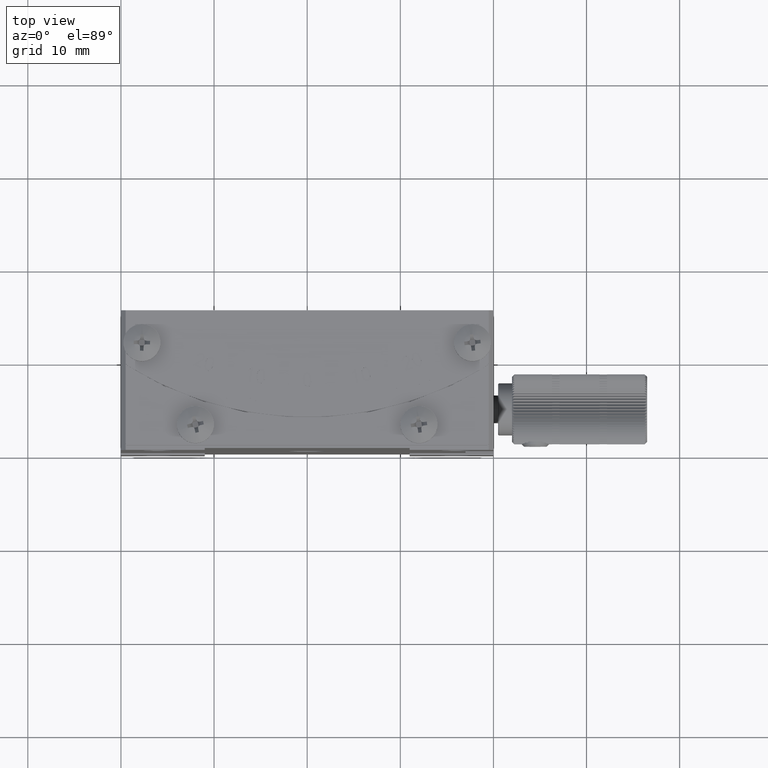
[diagram: clean part render]
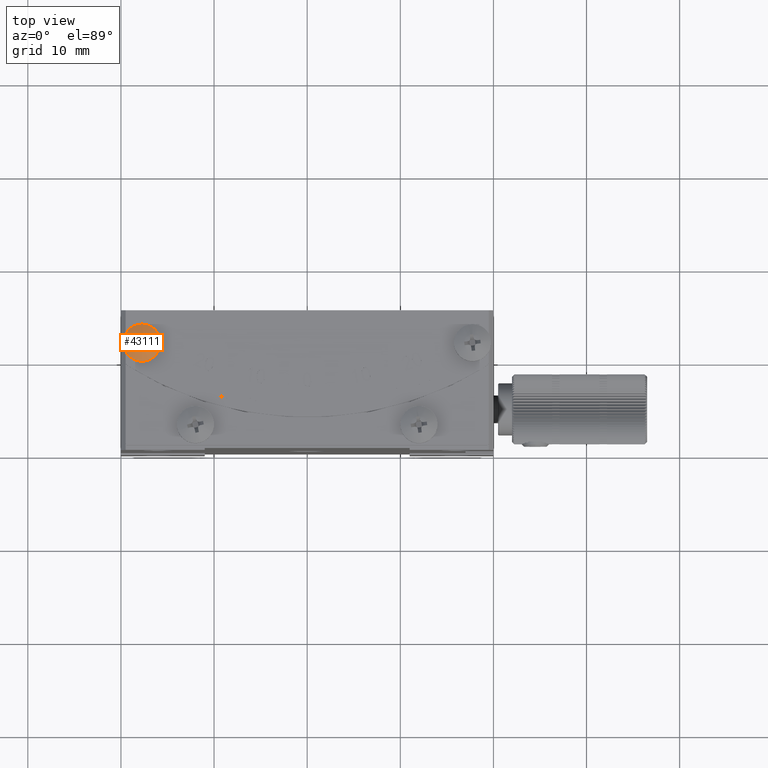
[diagram: same view with one face highlighted and labeled with its STEP entity id]
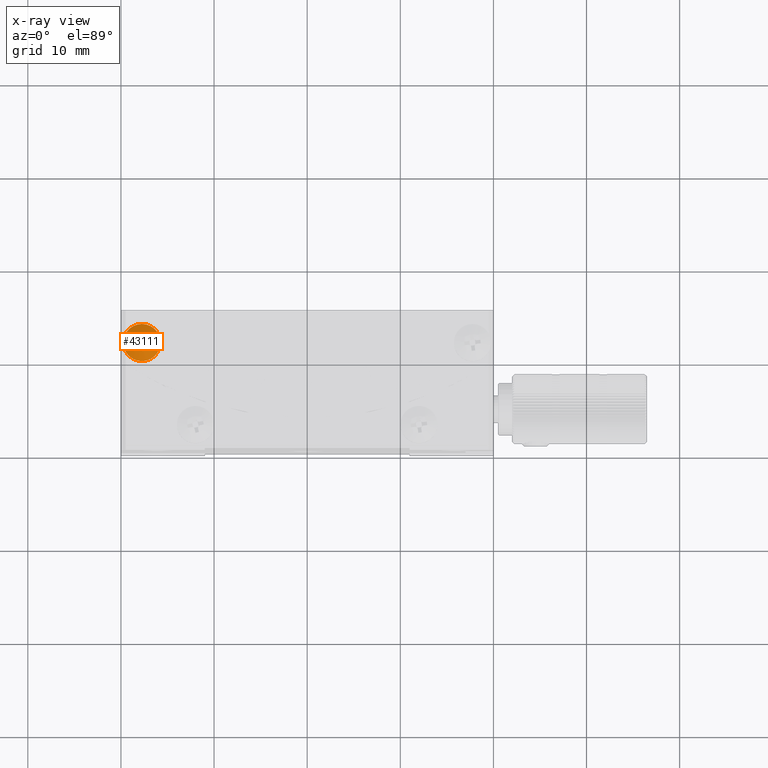
[diagram: x-ray of the same camera — body ghosted, the highlighted face saturated]
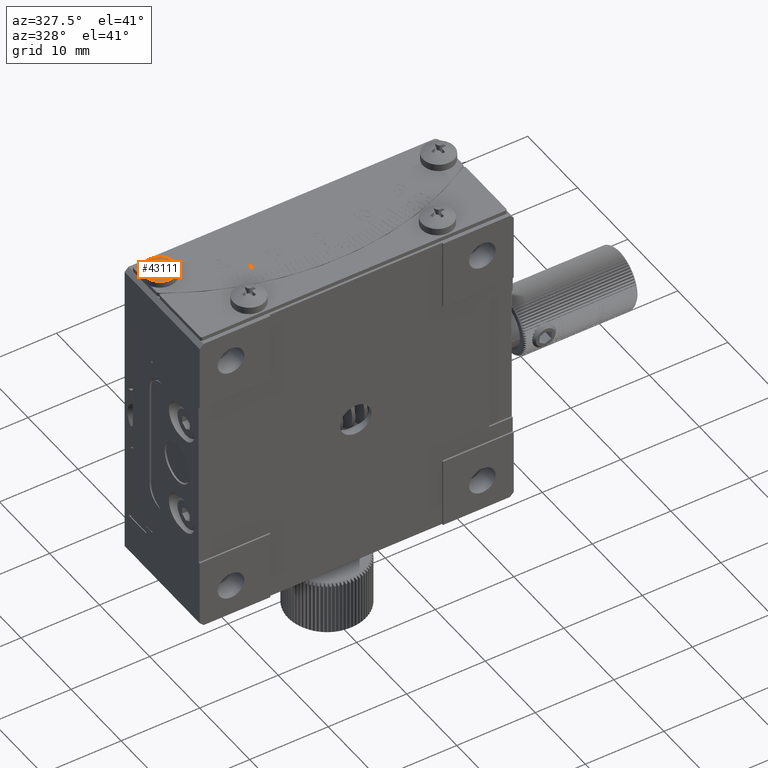
[diagram: same view with one face highlighted and labeled with its STEP entity id]
A machine part, top view. The second image highlights one B-rep face of the part: STEP entity #43111.
The next image is the same camera in x-ray: the body ghosted, the highlighted face saturated — about 0% of this face is hidden behind the body in this view.
A second angle (auxiliary view) of the same face is appended — the face is thin or edge-on in the first view.
In plain terms, the highlighted face is a freeform B-spline surface patch.
Its self-contained STEP definition (entity closure, byte-faithful):
#118 = B_SPLINE_CURVE_WITH_KNOTS ( 'NONE', 3,
 ( #23348, #52988, #13066, #8838 ),
 .UNSPECIFIED., .F., .F.,
 ( 4, 4 ),
 ( 0.000000000000000000, 1.000000000000000000 ),
 .UNSPECIFIED. ) ;
#523 = B_SPLINE_CURVE_WITH_KNOTS ( 'NONE', 3,
 ( #25782, #20962, #6750, #26429 ),
 .UNSPECIFIED., .F., .F.,
 ( 4, 4 ),
 ( 0.000000000000000000, 0.0003952073251949371805 ),
 .UNSPECIFIED. ) ;
#806 = EDGE_CURVE ( 'NONE', #22763, #16039, #28143, .T. ) ;
#939 = VERTEX_POINT ( 'NONE', #43212 ) ;
#1924 = CARTESIAN_POINT ( 'NONE',  ( -19.35210513844051050, -30.50296721763338326, 20.81347366077209315 ) ) ;
#1981 = VERTEX_POINT ( 'NONE', #50751 ) ;
#2242 = CARTESIAN_POINT ( 'NONE',  ( -15.53496063037907504, -27.74703775191293786, 21.60088181169233579 ) ) ;
#2267 = B_SPLINE_CURVE_WITH_KNOTS ( 'NONE', 3,
 ( #40875, #60558, #61184, #41820 ),
 .UNSPECIFIED., .F., .F.,
 ( 4, 4 ),
 ( 0.000000000000000000, 1.000000000000000000 ),
 .UNSPECIFIED. ) ;
#2271 = DIRECTION ( 'NONE',  ( 0.01671184099785510621, 0.9998603474338115804, 0.000000000000000000 ) ) ;
#2413 = CARTESIAN_POINT ( 'NONE',  ( -18.62273430346789738, -28.29538642827671069, 21.97188348115892254 ) ) ;
#2425 = AXIS2_PLACEMENT_3D ( 'NONE', #43353, #48532, #18574 ) ;
#2799 = CARTESIAN_POINT ( 'NONE',  ( -17.54538642827670714, -27.62726569653225539, 21.97188348115896162 ) ) ;
#2997 = EDGE_CURVE ( 'NONE', #4165, #6129, #42145, .T. ) ;
#3570 = VERTEX_POINT ( 'NONE', #62539 ) ;
#3593 = CARTESIAN_POINT ( 'NONE',  ( -17.94684832422993281, -28.90814377405679636, 22.06875370086008203 ) ) ;
#3719 = ORIENTED_EDGE ( 'NONE', *, *, #57961, .T. ) ;
#3933 = CARTESIAN_POINT ( 'NONE',  ( -17.73531126095980426, -27.62118074112969879, 21.97692394302882235 ) ) ;
#4165 = VERTEX_POINT ( 'NONE', #16659 ) ;
#4438 = CARTESIAN_POINT ( 'NONE',  ( -17.75317524978959582, -28.68997346601243237, 18.89999999999999858 ) ) ;
#5102 = VERTEX_POINT ( 'NONE', #49856 ) ;
#5254 = DIRECTION ( 'NONE',  ( 0.01671184099785510621, 0.9998603474338115804, 0.000000000000000000 ) ) ;
#5555 = CARTESIAN_POINT ( 'NONE',  ( -17.55183773189862606, -28.01324367954703831, 22.05654874823754596 ) ) ;
#6053 = ORIENTED_EDGE ( 'NONE', *, *, #2997, .T. ) ;
#6129 = VERTEX_POINT ( 'NONE', #15455 ) ;
#6202 = EDGE_CURVE ( 'NONE', #46453, #33608, #2267, .T. ) ;
#6750 = CARTESIAN_POINT ( 'NONE',  ( -17.92745456323360287, -27.74782561339930709, 22.00808052491014877 ) ) ;
#7069 = CARTESIAN_POINT ( 'NONE',  ( -18.33556445990900841, -26.46775973077802746, 21.59901555958337127 ) ) ;
#7364 = ORIENTED_EDGE ( 'NONE', *, *, #47472, .T. ) ;
#7383 = CARTESIAN_POINT ( 'NONE',  ( -19.94562718726560746, -27.67331709844125598, 21.59516803772158156 ) ) ;
#7444 = B_SPLINE_CURVE_WITH_KNOTS ( 'NONE', 3,
 ( #12285, #31900, #31593, #7744 ),
 .UNSPECIFIED., .F., .F.,
 ( 4, 4 ),
 ( 0.000000000000000000, 1.000000000000000000 ),
 .UNSPECIFIED. ) ;
#7468 = CARTESIAN_POINT ( 'NONE',  ( -17.57254543676986813, -29.25217438680876825, 22.00808052486454613 ) ) ;
#7744 = CARTESIAN_POINT ( 'NONE',  ( -17.54538642827670714, -27.62726569653225539, 21.97188348115896162 ) ) ;
#8038 = CARTESIAN_POINT ( 'NONE',  ( -17.26324367954702410, -28.69816226810138104, 22.05654874823754241 ) ) ;
#8295 = AXIS2_PLACEMENT_3D ( 'NONE', #40627, #2271, #41573 ) ;
#8446 = ORIENTED_EDGE ( 'NONE', *, *, #29471, .T. ) ;
#8838 = CARTESIAN_POINT ( 'NONE',  ( -17.76468873904019929, -29.37881925887031898, 21.97692394302882235 ) ) ;
#9232 = CARTESIAN_POINT ( 'NONE',  ( -17.95034193425408020, -29.11716455955808058, 22.03630228055737206 ) ) ;
#10008 = B_SPLINE_CURVE_WITH_KNOTS ( 'NONE', 3,
 ( #42753, #42439, #22811, #18293, #32124, #57289 ),
 .UNSPECIFIED., .F., .F.,
 ( 4, 2, 4 ),
 ( 0.000000000000000000, 0.0002353680905938592511, 0.0004707361811877185023 ),
 .UNSPECIFIED. ) ;
#10121 = DIRECTION ( 'NONE',  ( -0.9998603474338116914, 0.01671184099785471763, 0.000000000000000000 ) ) ;
#10166 = DIRECTION ( 'NONE',  ( -0.9998603474338116914, 0.01671184099785471763, -2.606684060501012863E-14 ) ) ;
#11303 = FACE_BOUND ( 'NONE', #52394, .T. ) ;
#11437 = CARTESIAN_POINT ( 'NONE',  ( -18.07975580058870335, -28.27219374645446948, 22.07577316318331384 ) ) ;
#12028 = CARTESIAN_POINT ( 'NONE',  ( -17.57039500222923323, -29.12351505913742145, 22.03630228055734719 ) ) ;
#12067 = CIRCLE ( 'NONE', #31586, 3.194354394866043556 ) ;
#12285 = CARTESIAN_POINT ( 'NONE',  ( -17.73531126095980426, -27.62118074112969879, 21.97692394302882235 ) ) ;
#13066 = CARTESIAN_POINT ( 'NONE',  ( -17.70130482883060807, -29.37987866864885689, 21.97692394302882235 ) ) ;
#13592 = CARTESIAN_POINT ( 'NONE',  ( -17.86203587094993850, -27.62003281662556731, 21.97524378907218789 ) ) ;
#13616 = CARTESIAN_POINT ( 'NONE',  ( -18.16448797195035425, -28.68309871312240134, 22.06875467922521850 ) ) ;
#13651 = EDGE_CURVE ( 'NONE', #6129, #48589, #14556, .T. ) ;
#14481 = DIRECTION ( 'NONE',  ( -0.01671184099785510621, -0.9998603474338115804, -0.000000000000000000 ) ) ;
#14556 = B_SPLINE_CURVE_WITH_KNOTS ( 'NONE', 3,
 ( #21774, #36577, #51410, #2413 ),
 .UNSPECIFIED., .F., .F.,
 ( 4, 4 ),
 ( 3.469446951953614189E-18, 0.0003799999999999967683 ),
 .UNSPECIFIED. ) ;
#14762 = EDGE_CURVE ( 'NONE', #24641, #21275, #7444, .T. ) ;
#14964 = B_SPLINE_CURVE_WITH_KNOTS ( 'NONE', 3,
 ( #2799, #17959, #21830, #52425 ),
 .UNSPECIFIED., .F., .F.,
 ( 4, 4 ),
 ( 1.565870224650816785E-16, 0.0003952073255140216746 ),
 .UNSPECIFIED. ) ;
#15026 = CARTESIAN_POINT ( 'NONE',  ( -17.75317524978959582, -28.68997346601243237, 18.89999999999999858 ) ) ;
#15455 = CARTESIAN_POINT ( 'NONE',  ( -18.62908480304708547, -28.67533336030155411, 21.97188348115891898 ) ) ;
#15756 = CARTESIAN_POINT ( 'NONE',  ( -18.23675632045297235, -28.30183773189863672, 22.05654874823754241 ) ) ;
#15923 = CARTESIAN_POINT ( 'NONE',  ( -16.87126561194471464, -28.57802949972574780, 21.97861040930522591 ) ) ;
#16039 = VERTEX_POINT ( 'NONE', #44760 ) ;
#16155 = CARTESIAN_POINT ( 'NONE',  ( -18.40178560793867391, -30.51885102473870504, 21.59252648423906962 ) ) ;
#16242 = CARTESIAN_POINT ( 'NONE',  ( -17.56821533607652697, -28.99310682003216399, 22.05654874823754241 ) ) ;
#16366 =( BOUNDED_SURFACE ( )  B_SPLINE_SURFACE ( 3, 3, ( 
 ( #21294, #7069, #46697, #25788 ),
 ( #7383, #46385, #41870, #2242 ),
 ( #16772, #50923, #46076, #45416 ),
 ( #1924, #16155, #61551, #27065 ) ),
 .UNSPECIFIED., .F., .F., .T. ) 
 B_SPLINE_SURFACE_WITH_KNOTS ( ( 4, 4 ),
 ( 4, 4 ),
 ( 0.000000000000000000, 1.000000000000000000 ),
 ( 0.000000000000000000, 1.000000000000000000 ),
 .UNSPECIFIED. ) 
 GEOMETRIC_REPRESENTATION_ITEM ( )  RATIONAL_B_SPLINE_SURFACE ( (
 ( 1.000000000000000000, 0.8494767414081668688, 0.8494767414081668688, 1.000000000000000000),
 ( 0.8493973378580044198, 0.7215432827243893898, 0.7215432827243893898, 0.8493973378580044198),
 ( 0.8493973378580044198, 0.7215432827243893898, 0.7215432827243893898, 0.8493973378580044198),
 ( 1.000000000000000000, 0.8494767414081668688, 0.8494767414081668688, 1.000000000000000000) ) ) 
 REPRESENTATION_ITEM ( '' )  SURFACE ( )  );
#16659 = CARTESIAN_POINT ( 'NONE',  ( -18.24310682003216044, -28.68178466392348369, 22.05654874823754241 ) ) ;
#16772 = CARTESIAN_POINT ( 'NONE',  ( -19.97071589607740805, -29.26312255771047433, 21.59335831028254304 ) ) ;
#16895 = AXIS2_PLACEMENT_3D ( 'NONE', #4438, #14481, #39259 ) ;
#16909 = CARTESIAN_POINT ( 'NONE',  ( -17.96678780226920225, -28.16302747027834741, 22.07578688267521372 ) ) ;
#17959 = CARTESIAN_POINT ( 'NONE',  ( -17.54750763120527779, -27.75417611277028840, 22.00808052486450350 ) ) ;
#18293 = CARTESIAN_POINT ( 'NONE',  ( -17.53321219773079420, -28.83697252972166680, 22.07578688267521372 ) ) ;
#18574 = DIRECTION ( 'NONE',  ( 0.000000000000000000, 1.000000000000000000, 0.000000000000000000 ) ) ;
#20578 = EDGE_CURVE ( 'NONE', #30437, #5102, #58403, .T. ) ;
#20962 = CARTESIAN_POINT ( 'NONE',  ( -17.92960499777253247, -27.87648494096838192, 22.03630228057377494 ) ) ;
#21275 = VERTEX_POINT ( 'NONE', #22889 ) ;
#21294 = CARTESIAN_POINT ( 'NONE',  ( -19.28817429101538394, -26.45183764318718644, 20.81808519377901234 ) ) ;
#21598 = AXIS2_PLACEMENT_3D ( 'NONE', #15026, #34667, #10166 ) ;
#21774 = CARTESIAN_POINT ( 'NONE',  ( -18.62908480304708547, -28.67533336030155411, 21.97188348115891898 ) ) ;
#21830 = CARTESIAN_POINT ( 'NONE',  ( -17.54965806574591980, -27.88283544044194073, 22.03630228055737561 ) ) ;
#21975 = EDGE_CURVE ( 'NONE', #38282, #63441, #49709, .T. ) ;
#21979 = CARTESIAN_POINT ( 'NONE',  ( -17.79869517116935640, -27.62012133135116088, 21.97692394302882235 ) ) ;
#22763 = VERTEX_POINT ( 'NONE', #44975 ) ;
#22811 = CARTESIAN_POINT ( 'NONE',  ( -17.42024419941130375, -28.72780625354554829, 22.07577316318331384 ) ) ;
#22889 = CARTESIAN_POINT ( 'NONE',  ( -17.54538642827670714, -27.62726569653225539, 21.97188348115896162 ) ) ;
#22954 = CARTESIAN_POINT ( 'NONE',  ( -17.94816226810137039, -28.98675632045298300, 22.05654874823754241 ) ) ;
#23272 = CARTESIAN_POINT ( 'NONE',  ( -17.97780625354548434, -28.82975580058868914, 22.07577316318331384 ) ) ;
#23348 = CARTESIAN_POINT ( 'NONE',  ( -17.57466663969844944, -29.37908480304709258, 21.97188348115891898 ) ) ;
#23853 = CARTESIAN_POINT ( 'NONE',  ( -17.33551202804964930, -28.31690128687761288, 22.06875467922521850 ) ) ;
#24641 = VERTEX_POINT ( 'NONE', #3933 ) ;
#24696 = CARTESIAN_POINT ( 'NONE',  ( -17.95249236879471866, -29.24582388722972581, 22.00808052486450705 ) ) ;
#25112 = CIRCLE ( 'NONE', #16895, 3.194354394866043556 ) ;
#25782 = CARTESIAN_POINT ( 'NONE',  ( -17.93178466392347303, -28.00689317996784311, 22.05654874823754241 ) ) ;
#25788 = CARTESIAN_POINT ( 'NONE',  ( -16.14921074623686437, -26.50430282974352636, 20.82215154700838866 ) ) ;
#26248 = CARTESIAN_POINT ( 'NONE',  ( -18.15814377405678570, -28.30315167577007784, 22.06875370086008203 ) ) ;
#26429 = CARTESIAN_POINT ( 'NONE',  ( -17.92533336030155056, -27.62091519695292163, 21.97188348115891898 ) ) ;
#26910 = ORIENTED_EDGE ( 'NONE', *, *, #6202, .T. ) ;
#27065 = CARTESIAN_POINT ( 'NONE',  ( -16.22068840860077543, -30.55530626540281958, 20.81753023752115084 ) ) ;
#27765 = ORIENTED_EDGE ( 'NONE', *, *, #14762, .T. ) ;
#28083 = CARTESIAN_POINT ( 'NONE',  ( -17.92533336030155056, -27.62091519695292163, 21.97188348115891898 ) ) ;
#28143 = B_SPLINE_CURVE_WITH_KNOTS ( 'NONE', 3,
 ( #16242, #12028, #7468, #60692 ),
 .UNSPECIFIED., .F., .F.,
 ( 4, 4 ),
 ( 0.000000000000000000, 0.0003952073255143299674 ),
 .UNSPECIFIED. ) ;
#28688 = CARTESIAN_POINT ( 'NONE',  ( -17.41302747027839359, -28.28321219773083328, 22.07578688267521372 ) ) ;
#28903 = CARTESIAN_POINT ( 'NONE',  ( -17.94816226810137039, -28.98675632045298300, 22.05654874823754241 ) ) ;
#29471 = EDGE_CURVE ( 'NONE', #48589, #38282, #39150, .T. ) ;
#30072 = CARTESIAN_POINT ( 'NONE',  ( -16.87091519695291097, -28.32466663969846365, 21.97188348115891543 ) ) ;
#30437 = VERTEX_POINT ( 'NONE', #5555 ) ;
#30751 = CARTESIAN_POINT ( 'NONE',  ( -17.93309871312239068, -28.08551202804965286, 22.06875467922521850 ) ) ;
#31586 = AXIS2_PLACEMENT_3D ( 'NONE', #44901, #5254, #10121 ) ;
#31593 = CARTESIAN_POINT ( 'NONE',  ( -17.60861907318922093, -27.62426846937570701, 21.97524378907218789 ) ) ;
#31689 = CARTESIAN_POINT ( 'NONE',  ( -17.93178466392347303, -28.00689317996784311, 22.05654874823754241 ) ) ;
#31900 = CARTESIAN_POINT ( 'NONE',  ( -17.67192735075025212, -27.62224015090823670, 21.97692394302882235 ) ) ;
#32124 = CARTESIAN_POINT ( 'NONE',  ( -17.56690128687761288, -28.91448797195035780, 22.06875467922521850 ) ) ;
#32490 = VERTEX_POINT ( 'NONE', #37642 ) ;
#33147 = EDGE_CURVE ( 'NONE', #32490, #32490, #52900, .T. ) ;
#33510 = VERTEX_POINT ( 'NONE', #57493 ) ;
#33608 = VERTEX_POINT ( 'NONE', #45492 ) ;
#33905 = EDGE_CURVE ( 'NONE', #21275, #30437, #14964, .T. ) ;
#34178 = CARTESIAN_POINT ( 'NONE',  ( -17.76468873904019929, -29.37881925887031898, 21.97692394302882235 ) ) ;
#34667 = DIRECTION ( 'NONE',  ( -0.01671184099785510621, -0.9998603474338115804, -0.000000000000000000 ) ) ;
#35553 = CARTESIAN_POINT ( 'NONE',  ( -16.87726569653209907, -28.70461357172330352, 21.97188348115891898 ) ) ;
#35931 = ORIENTED_EDGE ( 'NONE', *, *, #13651, .T. ) ;
#36279 = ORIENTED_EDGE ( 'NONE', *, *, #45140, .T. ) ;
#36334 = EDGE_CURVE ( 'NONE', #5102, #939, #12067, .T. ) ;
#36577 = CARTESIAN_POINT ( 'NONE',  ( -18.63085122124834214, -28.54861947761588681, 21.97861040930522591 ) ) ;
#36827 = EDGE_CURVE ( 'NONE', #44126, #22763, #10008, .T. ) ;
#37642 = CARTESIAN_POINT ( 'NONE',  ( -17.75000000000000355, -26.50000000000001066, 21.39799919935936146 ) ) ;
#38072 = CARTESIAN_POINT ( 'NONE',  ( -18.24310682003216044, -28.68178466392348369, 22.05654874823754241 ) ) ;
#38282 = VERTEX_POINT ( 'NONE', #15756 ) ;
#38928 = ORIENTED_EDGE ( 'NONE', *, *, #806, .T. ) ;
#39150 = CIRCLE ( 'NONE', #8295, 3.194354394866043556 ) ;
#39259 = DIRECTION ( 'NONE',  ( -0.9998603474338116914, 0.01671184099785471763, 0.000000000000000000 ) ) ;
#40627 = CARTESIAN_POINT ( 'NONE',  ( -17.74682475021040773, -28.31002653398758540, 18.89999999999999858 ) ) ;
#40695 = CARTESIAN_POINT ( 'NONE',  ( -18.62273430346789738, -28.29538642827671069, 21.97188348115892254 ) ) ;
#40875 = CARTESIAN_POINT ( 'NONE',  ( -17.76468873904019929, -29.37881925887031898, 21.97692394302882235 ) ) ;
#41573 = DIRECTION ( 'NONE',  ( -0.9998603474338116914, 0.01671184099785471763, 0.000000000000000000 ) ) ;
#41678 = B_SPLINE_CURVE_WITH_KNOTS ( 'NONE', 3,
 ( #28083, #13592, #21979, #41936 ),
 .UNSPECIFIED., .F., .F.,
 ( 4, 4 ),
 ( 0.000000000000000000, 1.000000000000000000 ),
 .UNSPECIFIED. ) ;
#41820 = CARTESIAN_POINT ( 'NONE',  ( -17.95461357172329642, -29.37273430346775527, 21.97188348115896517 ) ) ;
#41870 = CARTESIAN_POINT ( 'NONE',  ( -16.87634347135988833, -27.72461764413163365, 22.69472245846167979 ) ) ;
#41936 = CARTESIAN_POINT ( 'NONE',  ( -17.73531126095980426, -27.62118074112969879, 21.97692394302882235 ) ) ;
#42145 = CIRCLE ( 'NONE', #21598, 3.194354394866043556 ) ;
#42439 = CARTESIAN_POINT ( 'NONE',  ( -17.34185622594321075, -28.69684832422993637, 22.06875370086008203 ) ) ;
#42583 = CARTESIAN_POINT ( 'NONE',  ( -18.08697252972159575, -28.71678780226917738, 22.07578688267521372 ) ) ;
#42631 = ORIENTED_EDGE ( 'NONE', *, *, #33905, .T. ) ;
#42753 = CARTESIAN_POINT ( 'NONE',  ( -17.26324367954702410, -28.69816226810138104, 22.05654874823754241 ) ) ;
#43084 = ORIENTED_EDGE ( 'NONE', *, *, #36827, .T. ) ;
#43111 = ADVANCED_FACE ( 'NONE', ( #11303, #60296 ), #16366, .T. ) ;
#43212 = CARTESIAN_POINT ( 'NONE',  ( -16.87091519695291097, -28.32466663969846365, 21.97188348115891543 ) ) ;
#43353 = CARTESIAN_POINT ( 'NONE',  ( -17.75000000000000355, -28.50000000000000711, 21.39799919935936146 ) ) ;
#43478 = CARTESIAN_POINT ( 'NONE',  ( -17.25689317996784311, -28.31821533607653052, 22.05654874823754241 ) ) ;
#44126 = VERTEX_POINT ( 'NONE', #8038 ) ;
#44760 = CARTESIAN_POINT ( 'NONE',  ( -17.57466663969844944, -29.37908480304709258, 21.97188348115891898 ) ) ;
#44901 = CARTESIAN_POINT ( 'NONE',  ( -17.74682475021040773, -28.31002653398758184, 18.89999999999999858 ) ) ;
#44975 = CARTESIAN_POINT ( 'NONE',  ( -17.56821533607652697, -28.99310682003216399, 22.05654874823754241 ) ) ;
#45140 = EDGE_CURVE ( 'NONE', #16039, #46453, #118, .T. ) ;
#45370 = ORIENTED_EDGE ( 'NONE', *, *, #21975, .T. ) ;
#45416 = CARTESIAN_POINT ( 'NONE',  ( -15.56301097430258196, -29.33679370989409563, 21.59906824761921129 ) ) ;
#45492 = CARTESIAN_POINT ( 'NONE',  ( -17.95461357172329642, -29.37273430346775527, 21.97188348115896517 ) ) ;
#46076 = CARTESIAN_POINT ( 'NONE',  ( -16.90349311547559097, -29.31438865656716430, 22.69217441200946794 ) ) ;
#46365 = B_SPLINE_CURVE_WITH_KNOTS ( 'NONE', 3,
 ( #30072, #60053, #15923, #35553 ),
 .UNSPECIFIED., .F., .F.,
 ( 4, 4 ),
 ( 3.469446951953614189E-18, 0.0003799999999999968767 ),
 .UNSPECIFIED. ) ;
#46385 = CARTESIAN_POINT ( 'NONE',  ( -18.60708207073775355, -27.69568977599896442, 22.69248038256867162 ) ) ;
#46453 = VERTEX_POINT ( 'NONE', #34178 ) ;
#46697 = CARTESIAN_POINT ( 'NONE',  ( -17.10384011645215097, -26.48834698722225411, 21.60061119017615994 ) ) ;
#47160 = B_SPLINE_CURVE_WITH_KNOTS ( 'NONE', 3,
 ( #22954, #3593, #23272, #42583, #13616, #38072 ),
 .UNSPECIFIED., .F., .F.,
 ( 4, 2, 4 ),
 ( 0.000000000000000000, 0.0002353680905938595764, 0.0004707361811877191528 ),
 .UNSPECIFIED. ) ;
#47472 = EDGE_CURVE ( 'NONE', #3570, #44126, #25112, .T. ) ;
#47956 = ORIENTED_EDGE ( 'NONE', *, *, #49214, .T. ) ;
#48147 = B_SPLINE_CURVE_WITH_KNOTS ( 'NONE', 3,
 ( #54027, #24696, #9232, #28903 ),
 .UNSPECIFIED., .F., .F.,
 ( 4, 4 ),
 ( 1.599712290883751206E-16, 0.0003952073255140100736 ),
 .UNSPECIFIED. ) ;
#48335 = CARTESIAN_POINT ( 'NONE',  ( -17.55315167577006363, -28.09185622594322851, 22.06875370086008914 ) ) ;
#48532 = DIRECTION ( 'NONE',  ( -6.727005625224217320E-17, 1.264013284194163009E-16, -1.000000000000000000 ) ) ;
#48589 = VERTEX_POINT ( 'NONE', #40695 ) ;
#48844 = ORIENTED_EDGE ( 'NONE', *, *, #20578, .T. ) ;
#49214 = EDGE_CURVE ( 'NONE', #33608, #1981, #48147, .T. ) ;
#49709 = B_SPLINE_CURVE_WITH_KNOTS ( 'NONE', 3,
 ( #55576, #26248, #11437, #16909, #30751, #31689 ),
 .UNSPECIFIED., .F., .F.,
 ( 4, 2, 4 ),
 ( 0.000000000000000000, 0.0002353680905938610401, 0.0004707361811877220801 ),
 .UNSPECIFIED. ) ;
#49856 = CARTESIAN_POINT ( 'NONE',  ( -17.25689317996784311, -28.31821533607653052, 22.05654874823754241 ) ) ;
#50751 = CARTESIAN_POINT ( 'NONE',  ( -17.94816226810137039, -28.98675632045298300, 22.05654874823754241 ) ) ;
#50923 = CARTESIAN_POINT ( 'NONE',  ( -18.63306957390741303, -29.28548021266183810, 22.68993384160561178 ) ) ;
#51410 = CARTESIAN_POINT ( 'NONE',  ( -18.62873438805528536, -28.42197050027426997, 21.97861040930522591 ) ) ;
#52394 = EDGE_LOOP ( 'NONE', ( #36279, #26910, #47956, #62661, #6053, #35931, #8446, #45370, #62393, #3719, #27765, #42631, #48844, #62808, #52864, #7364, #43084, #38928 ) ) ;
#52425 = CARTESIAN_POINT ( 'NONE',  ( -17.55183773189862606, -28.01324367954703831, 22.05654874823754596 ) ) ;
#52864 = ORIENTED_EDGE ( 'NONE', *, *, #56923, .T. ) ;
#52900 = CIRCLE ( 'NONE', #2425, 1.999999999999998224 ) ;
#52988 = CARTESIAN_POINT ( 'NONE',  ( -17.63796412905002597, -29.37996718337445046, 21.97524378907219145 ) ) ;
#53178 = CARTESIAN_POINT ( 'NONE',  ( -17.55183773189862606, -28.01324367954703831, 22.05654874823754596 ) ) ;
#53905 = ORIENTED_EDGE ( 'NONE', *, *, #33147, .F. ) ;
#54027 = CARTESIAN_POINT ( 'NONE',  ( -17.95461357172329642, -29.37273430346775527, 21.97188348115896517 ) ) ;
#55576 = CARTESIAN_POINT ( 'NONE',  ( -18.23675632045297235, -28.30183773189863672, 22.05654874823754241 ) ) ;
#56923 = EDGE_CURVE ( 'NONE', #939, #3570, #46365, .T. ) ;
#57093 = EDGE_CURVE ( 'NONE', #1981, #4165, #47160, .T. ) ;
#57289 = CARTESIAN_POINT ( 'NONE',  ( -17.56821533607652697, -28.99310682003216399, 22.05654874823754241 ) ) ;
#57493 = CARTESIAN_POINT ( 'NONE',  ( -17.92533336030155056, -27.62091519695292163, 21.97188348115891898 ) ) ;
#57690 = EDGE_LOOP ( 'NONE', ( #53905 ) ) ;
#57961 = EDGE_CURVE ( 'NONE', #33510, #24641, #41678, .T. ) ;
#58335 = CARTESIAN_POINT ( 'NONE',  ( -17.52219374645451921, -28.17024419941134994, 22.07577316318331739 ) ) ;
#58403 = B_SPLINE_CURVE_WITH_KNOTS ( 'NONE', 3,
 ( #53178, #48335, #58335, #28688, #23853, #43478 ),
 .UNSPECIFIED., .F., .F.,
 ( 4, 2, 4 ),
 ( 3.469446951953614189E-18, 0.0002353680905938556191, 0.0004707361811877077687 ),
 .UNSPECIFIED. ) ;
#60053 = CARTESIAN_POINT ( 'NONE',  ( -16.86914877875165431, -28.45138052238412740, 21.97861040930522591 ) ) ;
#60296 = FACE_OUTER_BOUND ( 'NONE', #57690, .T. ) ;
#60558 = CARTESIAN_POINT ( 'NONE',  ( -17.82807264924974788, -29.37775984909178106, 21.97692394302882235 ) ) ;
#60692 = CARTESIAN_POINT ( 'NONE',  ( -17.57466663969844944, -29.37908480304709258, 21.97188348115891898 ) ) ;
#61184 = CARTESIAN_POINT ( 'NONE',  ( -17.89138092681078263, -29.37573153062431075, 21.97524378907218789 ) ) ;
#61551 = CARTESIAN_POINT ( 'NONE',  ( -17.17302262275917712, -30.53938878452193606, 21.59411827855641519 ) ) ;
#62184 = EDGE_CURVE ( 'NONE', #63441, #33510, #523, .T. ) ;
#62393 = ORIENTED_EDGE ( 'NONE', *, *, #62184, .T. ) ;
#62539 = CARTESIAN_POINT ( 'NONE',  ( -16.87726569653209907, -28.70461357172330352, 21.97188348115891898 ) ) ;
#62661 = ORIENTED_EDGE ( 'NONE', *, *, #57093, .T. ) ;
#62808 = ORIENTED_EDGE ( 'NONE', *, *, #36334, .T. ) ;
#63187 = CARTESIAN_POINT ( 'NONE',  ( -17.93178466392347303, -28.00689317996784311, 22.05654874823754241 ) ) ;
#63441 = VERTEX_POINT ( 'NONE', #63187 ) ;